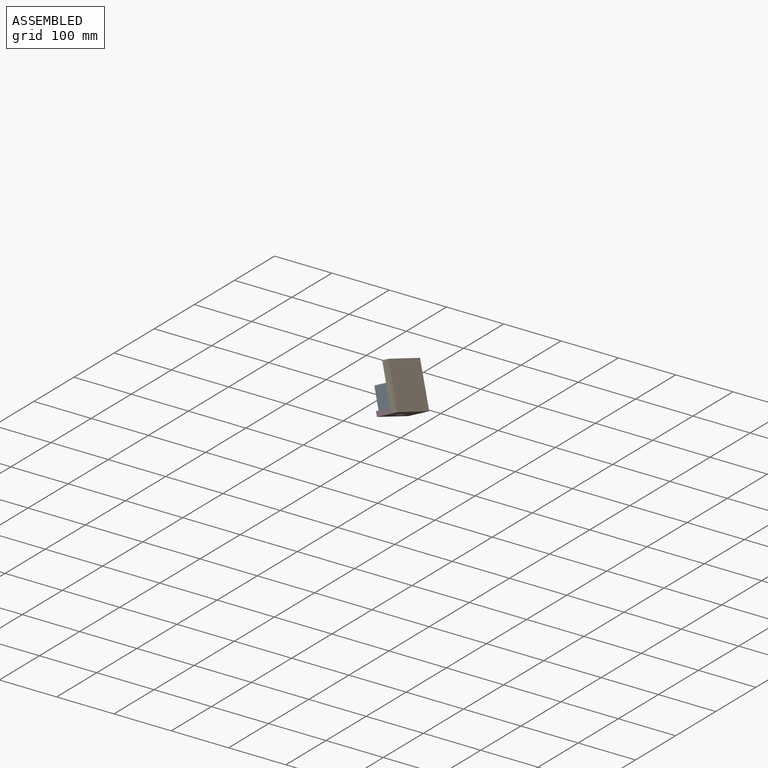
[diagram: assembled view]
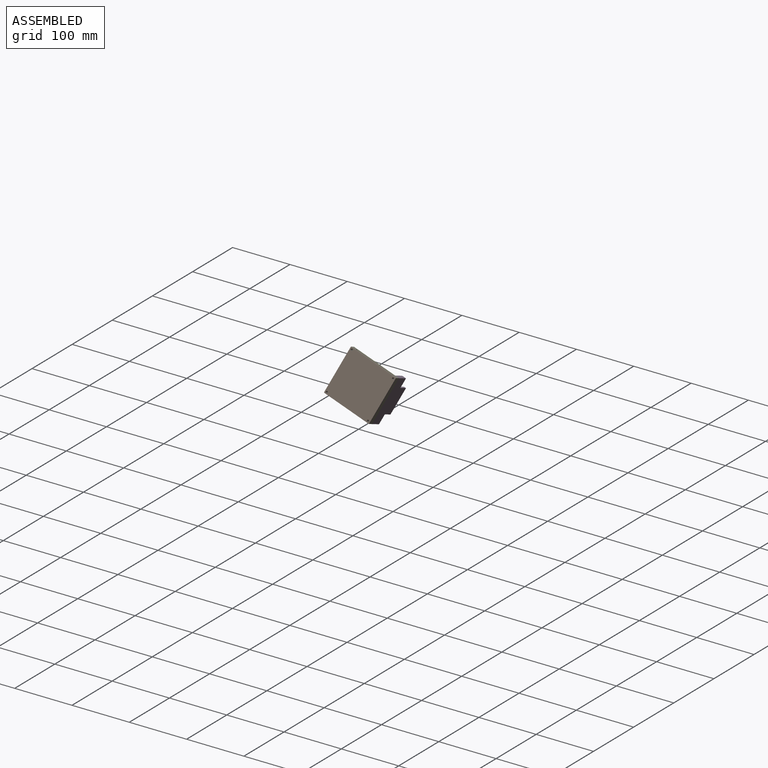
[diagram: assembled view, second angle]
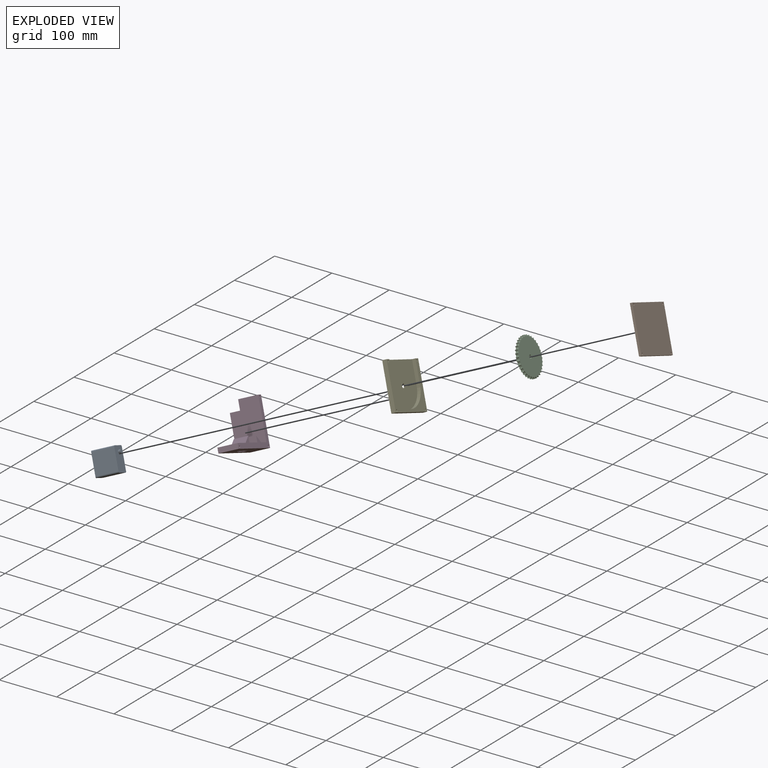
[diagram: exploded view]
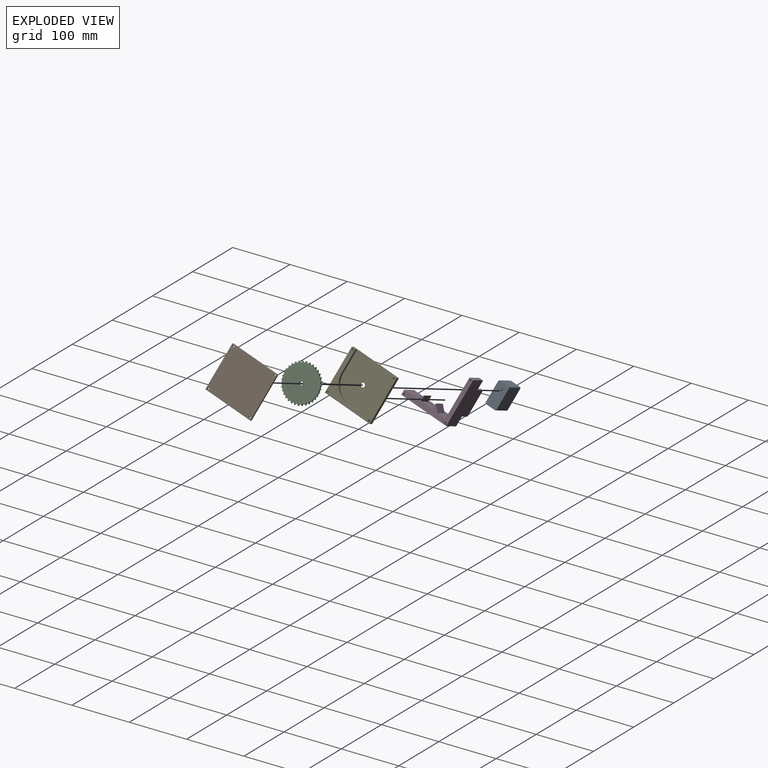
[diagram: exploded view, second angle]
ASSEMBLY  parts=5 mates=5
PART A: 16 faces, bbox 20x48.6x40 mm
  f0: plane 40x36mm, normal (-1,0,0), area 1440mm2, adj f4,f5,f6,f9
  f1: plane 40x16mm, normal (0,0,-1), area 640mm2, adj f4,f5,f6,f7
  f2: plane 40x36mm, normal (1,0,0), area 1440mm2, adj f4,f5,f7,f8
  f3: plane 40x16mm, normal (0,0,1), area 640mm2, adj f4,f5,f8,f9
  f4: plane 40x20mm, normal (0,-1,0), area 776.9mm2, adj f0,f1,f2,f3,f6,f7,f8,f9
  f5: plane 40x20mm, normal (0,1,0), area 768.3mm2, adj f0,f1,f2,f3,f6,f7,f8,f9
  f6: cylinder r=2mm len=40mm, axis (0,-1,0), area 125.7mm2, adj f0,f1,f4,f5
  f7: cylinder r=2mm len=40mm, axis (0,1,0), area 125.7mm2, adj f1,f2,f4,f5
  f8: cylinder r=2mm len=40mm, axis (0,-1,0), area 125.7mm2, adj f2,f3,f4,f5
  f9: cylinder r=2mm len=40mm, axis (0,1,0), area 125.7mm2, adj f0,f3,f4,f5
  f10: cylinder r=2.5mm len=5mm, axis (0,1,0), area 15.7mm2, adj f4,f13
  f11: cylinder r=3mm len=6mm, axis (0,1,0), area 62.2mm2, adj f12,f13
  f12: plane 6x6mm, normal (0,-1,0), area 28.3mm2, adj f11
  f13: plane 6x6mm, normal (0,1,0), area 8.6mm2, adj f10,f11
  f14: cylinder r=3mm len=6mm, axis (0,-1,0), area 81.1mm2, adj f5,f15
  f15: plane 6x6mm, normal (0,1,0), area 28.3mm2, adj f14
PART B: 10 faces, bbox 4x83.6x77.8 mm
  f0: plane 77.8x4mm, normal (0,-1,0), area 311.2mm2, adj f1,f3,f4,f5
  f1: plane 83.6x4mm, normal (0,0,-1), area 334.4mm2, adj f0,f2,f4,f5
  f2: plane 77.8x4mm, normal (0,1,0), area 311.2mm2, adj f1,f3,f4,f5
  f3: plane 83.6x4mm, normal (0,0,1), area 334.4mm2, adj f0,f2,f4,f5
  f4: plane 83.6x77.8mm, normal (1,0,0), area 6471.9mm2, adj f0,f1,f2,f3,f6,f7,f8,f9
  f5: plane 83.6x77.8mm, normal (-1,0,0), area 6471.9mm2, adj f0,f1,f2,f3,f6,f7,f8,f9
  f6: cylinder r=1.6mm len=4mm, axis (1,0,0), area 40.2mm2, adj f4,f5
  f7: cylinder r=1.6mm len=4mm, axis (1,0,0), area 40.2mm2, adj f4,f5
  f8: cylinder r=1.6mm len=4mm, axis (1,0,0), area 40.2mm2, adj f4,f5
  f9: cylinder r=1.6mm len=4mm, axis (1,0,0), area 40.2mm2, adj f4,f5
PART C: 108 faces, bbox 4.9x64.8x64.9 mm
  f0: cylinder r=2.75mm len=4.9mm, axis (-1,0,0), area 19.2mm2, adj f1,f104,f106,f107
  f1: cylinder r=2.41mm len=4.9mm, axis (-1,0,0), area 18.4mm2, adj f0,f2,f106,f107
  f2: cylinder r=30mm len=4.9mm, axis (-1,0,0), area 3.1mm2, adj f1,f3,f106,f107
  f3: cylinder r=2.75mm len=4.9mm, axis (-1,0,0), area 19.2mm2, adj f2,f4,f106,f107
  f4: cylinder r=2.41mm len=4.9mm, axis (-1,0,0), area 18.4mm2, adj f3,f5,f106,f107
  f5: cylinder r=30mm len=4.9mm, axis (-1,0,0), area 3.1mm2, adj f4,f6,f106,f107
  f6: cylinder r=2.75mm len=4.9mm, axis (-1,0,0), area 19.2mm2, adj f5,f7,f106,f107
  f7: cylinder r=2.41mm len=4.9mm, axis (-1,0,0), area 18.4mm2, adj f6,f8,f106,f107
  f8: cylinder r=30mm len=4.9mm, axis (-1,0,0), area 3.1mm2, adj f7,f9,f106,f107
  f9: cylinder r=2.75mm len=4.9mm, axis (-1,0,0), area 19.2mm2, adj f8,f10,f106,f107
  f10: cylinder r=2.41mm len=4.9mm, axis (-1,0,0), area 18.4mm2, adj f9,f11,f106,f107
  f11: cylinder r=30mm len=4.9mm, axis (-1,0,0), area 3.1mm2, adj f10,f12,f106,f107
  f12: cylinder r=2.75mm len=4.9mm, axis (-1,0,0), area 19.2mm2, adj f11,f13,f106,f107
  f13: cylinder r=2.41mm len=4.9mm, axis (-1,0,0), area 18.4mm2, adj f12,f14,f106,f107
  f14: cylinder r=30mm len=4.9mm, axis (-1,0,0), area 3.1mm2, adj f13,f15,f106,f107
  f15: cylinder r=2.75mm len=4.9mm, axis (-1,0,0), area 19.2mm2, adj f14,f16,f106,f107
  f16: cylinder r=2.41mm len=4.9mm, axis (-1,0,0), area 18.4mm2, adj f15,f17,f106,f107
  f17: cylinder r=30mm len=4.9mm, axis (-1,0,0), area 3.1mm2, adj f16,f18,f106,f107
  f18: cylinder r=2.75mm len=4.9mm, axis (-1,0,0), area 19.2mm2, adj f17,f19,f106,f107
  f19: cylinder r=2.41mm len=4.9mm, axis (-1,0,0), area 18.4mm2, adj f18,f20,f106,f107
  f20: cylinder r=30mm len=4.9mm, axis (-1,0,0), area 3.1mm2, adj f19,f21,f106,f107
  f21: cylinder r=2.75mm len=4.9mm, axis (-1,0,0), area 19.2mm2, adj f20,f22,f106,f107
  f22: cylinder r=2.41mm len=4.9mm, axis (-1,0,0), area 18.4mm2, adj f21,f23,f106,f107
  f23: cylinder r=30mm len=4.9mm, axis (-1,0,0), area 3.1mm2, adj f22,f24,f106,f107
  f24: cylinder r=2.75mm len=4.9mm, axis (-1,0,0), area 19.2mm2, adj f23,f25,f106,f107
  f25: cylinder r=2.41mm len=4.9mm, axis (-1,0,0), area 18.4mm2, adj f24,f26,f106,f107
  f26: cylinder r=30mm len=4.9mm, axis (-1,0,0), area 3.1mm2, adj f25,f27,f106,f107
  f27: cylinder r=2.75mm len=4.9mm, axis (-1,0,0), area 19.2mm2, adj f26,f28,f106,f107
  f28: cylinder r=2.41mm len=4.9mm, axis (-1,0,0), area 18.4mm2, adj f27,f29,f106,f107
  f29: cylinder r=30mm len=4.9mm, axis (-1,0,0), area 3.1mm2, adj f28,f30,f106,f107
  f30: cylinder r=2.75mm len=4.9mm, axis (-1,0,0), area 19.2mm2, adj f29,f31,f106,f107
  f31: cylinder r=2.41mm len=4.9mm, axis (-1,0,0), area 18.4mm2, adj f30,f32,f106,f107
  f32: cylinder r=30mm len=4.9mm, axis (-1,0,0), area 3.1mm2, adj f31,f33,f106,f107
  f33: cylinder r=2.75mm len=4.9mm, axis (-1,0,0), area 19.2mm2, adj f32,f34,f106,f107
  f34: cylinder r=2.41mm len=4.9mm, axis (-1,0,0), area 18.4mm2, adj f33,f35,f106,f107
  f35: cylinder r=30mm len=4.9mm, axis (-1,0,0), area 3.1mm2, adj f34,f36,f106,f107
  f36: cylinder r=2.75mm len=4.9mm, axis (-1,0,0), area 19.2mm2, adj f35,f37,f106,f107
  f37: cylinder r=2.41mm len=4.9mm, axis (-1,0,0), area 18.4mm2, adj f36,f38,f106,f107
  f38: cylinder r=30mm len=4.9mm, axis (-1,0,0), area 3.1mm2, adj f37,f39,f106,f107
  f39: cylinder r=2.75mm len=4.9mm, axis (-1,0,0), area 19.2mm2, adj f38,f40,f106,f107
  f40: cylinder r=2.41mm len=4.9mm, axis (-1,0,0), area 18.4mm2, adj f39,f41,f106,f107
  f41: cylinder r=30mm len=4.9mm, axis (-1,0,0), area 3.1mm2, adj f40,f42,f106,f107
  f42: cylinder r=2.75mm len=4.9mm, axis (-1,0,0), area 19.2mm2, adj f41,f43,f106,f107
  f43: cylinder r=2.41mm len=4.9mm, axis (-1,0,0), area 18.4mm2, adj f42,f44,f106,f107
  f44: cylinder r=30mm len=4.9mm, axis (-1,0,0), area 3.1mm2, adj f43,f45,f106,f107
  f45: cylinder r=2.75mm len=4.9mm, axis (-1,0,0), area 19.2mm2, adj f44,f46,f106,f107
  f46: cylinder r=2.41mm len=4.9mm, axis (-1,0,0), area 18.4mm2, adj f45,f47,f106,f107
  f47: cylinder r=30mm len=4.9mm, axis (-1,0,0), area 3.1mm2, adj f46,f48,f106,f107
  f48: cylinder r=2.75mm len=4.9mm, axis (-1,0,0), area 19.2mm2, adj f47,f49,f106,f107
  f49: cylinder r=2.41mm len=4.9mm, axis (-1,0,0), area 18.4mm2, adj f48,f50,f106,f107
  f50: cylinder r=30mm len=4.9mm, axis (-1,0,0), area 3.1mm2, adj f49,f51,f106,f107
  f51: cylinder r=2.75mm len=4.9mm, axis (-1,0,0), area 19.2mm2, adj f50,f52,f106,f107
  f52: cylinder r=2.41mm len=4.9mm, axis (-1,0,0), area 18.4mm2, adj f51,f53,f106,f107
  f53: cylinder r=30mm len=4.9mm, axis (-1,0,0), area 3.1mm2, adj f52,f54,f106,f107
  f54: cylinder r=2.75mm len=4.9mm, axis (-1,0,0), area 19.2mm2, adj f53,f55,f106,f107
  f55: cylinder r=2.41mm len=4.9mm, axis (-1,0,0), area 18.4mm2, adj f54,f56,f106,f107
  f56: cylinder r=30mm len=4.9mm, axis (-1,0,0), area 3.1mm2, adj f55,f57,f106,f107
  f57: cylinder r=2.75mm len=4.9mm, axis (-1,0,0), area 19.2mm2, adj f56,f58,f106,f107
  f58: cylinder r=2.41mm len=4.9mm, axis (-1,0,0), area 18.4mm2, adj f57,f59,f106,f107
  f59: cylinder r=30mm len=4.9mm, axis (-1,0,0), area 3.1mm2, adj f58,f60,f106,f107
  f60: cylinder r=2.75mm len=4.9mm, axis (-1,0,0), area 19.2mm2, adj f59,f61,f106,f107
  f61: cylinder r=2.41mm len=4.9mm, axis (-1,0,0), area 18.4mm2, adj f60,f62,f106,f107
  f62: cylinder r=30mm len=4.9mm, axis (-1,0,0), area 3.1mm2, adj f61,f63,f106,f107
  f63: cylinder r=2.75mm len=4.9mm, axis (-1,0,0), area 19.2mm2, adj f62,f64,f106,f107
  f64: cylinder r=2.41mm len=4.9mm, axis (-1,0,0), area 18.4mm2, adj f63,f65,f106,f107
  f65: cylinder r=30mm len=4.9mm, axis (-1,0,0), area 3.1mm2, adj f64,f66,f106,f107
  f66: cylinder r=2.75mm len=4.9mm, axis (-1,0,0), area 19.2mm2, adj f65,f67,f106,f107
  f67: cylinder r=2.41mm len=4.9mm, axis (-1,0,0), area 18.4mm2, adj f66,f68,f106,f107
  f68: cylinder r=30mm len=4.9mm, axis (-1,0,0), area 3.1mm2, adj f67,f69,f106,f107
  f69: cylinder r=2.75mm len=4.9mm, axis (-1,0,0), area 19.2mm2, adj f68,f70,f106,f107
  f70: cylinder r=2.41mm len=4.9mm, axis (-1,0,0), area 18.4mm2, adj f69,f71,f106,f107
  f71: cylinder r=30mm len=4.9mm, axis (-1,0,0), area 3.1mm2, adj f70,f72,f106,f107
  f72: cylinder r=2.75mm len=4.9mm, axis (-1,0,0), area 19.2mm2, adj f71,f73,f106,f107
  f73: cylinder r=2.41mm len=4.9mm, axis (-1,0,0), area 18.4mm2, adj f72,f74,f106,f107
  f74: cylinder r=30mm len=4.9mm, axis (-1,0,0), area 3.1mm2, adj f73,f75,f106,f107
  f75: cylinder r=2.75mm len=4.9mm, axis (-1,0,0), area 19.2mm2, adj f74,f76,f106,f107
  f76: cylinder r=2.41mm len=4.9mm, axis (-1,0,0), area 18.4mm2, adj f75,f77,f106,f107
  f77: cylinder r=30mm len=4.9mm, axis (-1,0,0), area 3.1mm2, adj f76,f78,f106,f107
  f78: cylinder r=2.75mm len=4.9mm, axis (-1,0,0), area 19.2mm2, adj f77,f79,f106,f107
  f79: cylinder r=2.41mm len=4.9mm, axis (-1,0,0), area 18.4mm2, adj f78,f80,f106,f107
  f80: cylinder r=30mm len=4.9mm, axis (-1,0,0), area 3.1mm2, adj f79,f81,f106,f107
  f81: cylinder r=2.75mm len=4.9mm, axis (-1,0,0), area 19.2mm2, adj f80,f82,f106,f107
  f82: cylinder r=2.41mm len=4.9mm, axis (-1,0,0), area 18.4mm2, adj f81,f83,f106,f107
  f83: cylinder r=30mm len=4.9mm, axis (-1,0,0), area 3.1mm2, adj f82,f84,f106,f107
  f84: cylinder r=2.75mm len=4.9mm, axis (-1,0,0), area 19.2mm2, adj f83,f85,f106,f107
  f85: cylinder r=2.41mm len=4.9mm, axis (-1,0,0), area 18.4mm2, adj f84,f86,f106,f107
  f86: cylinder r=30mm len=4.9mm, axis (-1,0,0), area 3.1mm2, adj f85,f87,f106,f107
  f87: cylinder r=2.75mm len=4.9mm, axis (-1,0,0), area 19.2mm2, adj f86,f88,f106,f107
  f88: cylinder r=2.41mm len=4.9mm, axis (-1,0,0), area 18.4mm2, adj f87,f89,f106,f107
  f89: cylinder r=30mm len=4.9mm, axis (-1,0,0), area 3.1mm2, adj f88,f90,f106,f107
  f90: cylinder r=2.75mm len=4.9mm, axis (-1,0,0), area 19.2mm2, adj f89,f91,f106,f107
  f91: cylinder r=2.41mm len=4.9mm, axis (-1,0,0), area 18.4mm2, adj f90,f92,f106,f107
  f92: cylinder r=30mm len=4.9mm, axis (-1,0,0), area 3.1mm2, adj f91,f93,f106,f107
  f93: cylinder r=2.75mm len=4.9mm, axis (-1,0,0), area 19.2mm2, adj f92,f94,f106,f107
  f94: cylinder r=2.41mm len=4.9mm, axis (-1,0,0), area 18.4mm2, adj f93,f95,f106,f107
  f95: cylinder r=30mm len=4.9mm, axis (-1,0,0), area 3.1mm2, adj f94,f96,f106,f107
  f96: cylinder r=2.75mm len=4.9mm, axis (-1,0,0), area 19.2mm2, adj f95,f97,f106,f107
  f97: cylinder r=2.41mm len=4.9mm, axis (-1,0,0), area 18.4mm2, adj f96,f98,f106,f107
  f98: cylinder r=30mm len=4.9mm, axis (-1,0,0), area 3.1mm2, adj f97,f99,f106,f107
  f99: cylinder r=2.75mm len=4.9mm, axis (-1,0,0), area 19.2mm2, adj f98,f100,f106,f107
  f100: cylinder r=2.41mm len=4.9mm, axis (-1,0,0), area 18.4mm2, adj f99,f101,f106,f107
  f101: cylinder r=30mm len=4.9mm, axis (-1,0,0), area 3.1mm2, adj f100,f102,f106,f107
  f102: cylinder r=2.75mm len=4.9mm, axis (-1,0,0), area 19.2mm2, adj f101,f103,f106,f107
  f103: cylinder r=2.41mm len=4.9mm, axis (-1,0,0), area 18.4mm2, adj f102,f104,f106,f107
  f104: cylinder r=30mm len=4.9mm, axis (-1,0,0), area 3.1mm2, adj f0,f103,f106,f107
  f105: cylinder r=3.05mm len=6.1mm, axis (-1,0,0), area 93.9mm2, adj f106,f107
  f106: plane 64.87x64.84mm, normal (1,0,0), area 2886mm2, adj f0,f1,f2,f3,f4,f5,f6,f7
  f107: plane 64.87x64.84mm, normal (-1,0,0), area 2886mm2, adj f0,f1,f2,f3,f4,f5,f6,f7
PART D: 24 faces, bbox 55x83.6x77.8 mm
  f0: plane 21x19mm, normal (0,0,1), area 399mm2, adj f3,f5,f7,f23
  f1: plane 83.6x35mm, normal (0,0,-1), area 2800mm2, adj f3,f5,f7,f10,f11,f17,f22,f23
  f2: plane 25x10mm, normal (0,0.71,0.71), area 353.6mm2, adj f3,f4,f5,f6
  f3: plane 25x18.5mm, normal (0,-1,0), area 301mm2, adj f0,f1,f2,f4,f5,f22,f23
  f4: plane 10x10mm, normal (-1,0,0), area 50mm2, adj f2,f3,f6
  f5: plane 83.6x77.8mm, normal (1,0,0), area 1271.6mm2, adj f0,f1,f2,f3,f6,f7,f8,f10
  f6: plane 76.6x35mm, normal (0,0,1), area 1656mm2, adj f2,f4,f5,f8,f9,f10,f13,f17
  f7: plane 25x18.5mm, normal (0,1,0), area 301mm2, adj f0,f1,f5,f8,f9,f22,f23
  f8: plane 25x10mm, normal (0,-0.71,0.71), area 353.6mm2, adj f5,f6,f7,f9
  f9: plane 10x10mm, normal (-1,0,0), area 50mm2, adj f6,f7,f8
  f10: plane 35x8.5mm, normal (0,-1,0), area 297.5mm2, adj f1,f5,f6,f17
  f11: plane 77.8x55mm, normal (0,1,0), area 3618.3mm2, adj f1,f5,f12,f17,f18,f20,f21
  f12: plane 35x7mm, normal (0,0,1), area 245mm2, adj f5,f11,f13,f17
  f13: plane 69.3x35mm, normal (0,-1,0), area 2425.5mm2, adj f5,f6,f12,f17
  f14: cylinder r=1.6mm len=35mm, axis (-1,0,0), area 351.9mm2, adj f5,f17
  f15: cylinder r=1.6mm len=35mm, axis (-1,0,0), area 351.9mm2, adj f5,f17
  f16: cylinder r=1.6mm len=35mm, axis (-1,0,0), area 351.9mm2, adj f5,f17
  f17: plane 83.6x77.8mm, normal (-1,0,0), area 1020.4mm2, adj f1,f6,f10,f11,f12,f13,f14,f15
  f18: plane 20x3.38mm, normal (0,0,1), area 67.5mm2, adj f11,f17,f19,f21
  f19: plane 44.77x20mm, normal (0,-1,0), area 895.3mm2, adj f17,f18,f20,f21
  f20: plane 20x3.38mm, normal (0,0,-1), area 67.5mm2, adj f11,f17,f19,f21
  f21: plane 44.77x3.38mm, normal (-1,0,0), area 151.2mm2, adj f11,f18,f19,f20
  f22: plane 21x8.5mm, normal (1,0,0), area 178.5mm2, adj f1,f3,f6,f7
  f23: plane 21x8.5mm, normal (-1,0,0), area 178.5mm2, adj f0,f1,f3,f7
PART E: 15 faces, bbox 7.7x83.6x77.8 mm
  f0: plane 83.6x77.8mm, normal (-1,0,0), area 6433.4mm2, adj f3,f4,f5,f6,f10,f11,f12,f13
  f1: plane 83.6x77.8mm, normal (1,0,0), area 1876mm2, adj f3,f4,f5,f6,f7,f8,f9,f11
  f2: plane 73.4x69.6mm, normal (1,0,0), area 4557.4mm2, adj f6,f7,f8,f9,f10
  f3: plane 77.8x7.7mm, normal (0,-1,0), area 599.1mm2, adj f0,f1,f4,f6
  f4: plane 83.6x7.7mm, normal (0,0,-1), area 643.7mm2, adj f0,f1,f3,f5
  f5: plane 77.8x7.7mm, normal (0,1,0), area 599.1mm2, adj f0,f1,f4,f6
  f6: plane 83.6x7.7mm, normal (0,0,1), area 226.1mm2, adj f0,f1,f2,f3,f5,f7,f8
  f7: plane 42.14x6mm, normal (0,1,0), area 252.8mm2, adj f1,f2,f6,f9
  f8: plane 42.14x6mm, normal (0,-1,0), area 252.8mm2, adj f1,f2,f6,f9
  f9: cylinder r=35mm len=69.6mm, axis (-1,0,0), area 614.8mm2, adj f1,f2,f7,f8
  f10: cylinder r=3.5mm len=7mm, axis (1,0,0), area 37.4mm2, adj f0,f2
  f11: cylinder r=1.6mm len=7.7mm, axis (1,0,0), area 77.4mm2, adj f0,f1
  f12: cylinder r=1.6mm len=7.7mm, axis (1,0,0), area 77.4mm2, adj f0,f1
  f13: cylinder r=1.6mm len=7.7mm, axis (1,0,0), area 77.4mm2, adj f0,f1
  f14: cylinder r=1.6mm len=7.7mm, axis (1,0,0), area 77.4mm2, adj f0,f1
PLACE A rot(axis=(-0.36,-0.04,0.93),98.4deg) t=(-23.13,-6.45,-68.15)mm
PLACE B rot(axis=(-0.62,-0.78,0.14),31.9deg) t=(23.5,-32.14,-45.76)mm
PLACE C rot(axis=(-0.62,-0.78,0.14),31.9deg) t=(1.05,18.43,-29.04)mm
PLACE D rot(axis=(-0.62,-0.78,0.14),31.9deg) t=(-5.49,-36.76,-58.46)mm
PLACE E rot(axis=(-0.62,-0.78,0.14),31.9deg) t=(17.17,-33.15,-48.53)mm
MATE cylindrical B.f9 <-> E.f13  axis (0.91,0.14,0.4) through (22.23,-27.92,-44.4)mm
MATE cylindrical B.f7 <-> E.f14  axis (-0.91,-0.14,-0.4) through (-8.12,66.32,-9.45)mm
MATE cylindrical D.f15 <-> E.f12  axis (0.91,0.14,0.4) through (24.97,44.5,-69.4)mm
MATE cylindrical E.f9 <-> A.f10  axis (-0.91,-0.14,-0.4) through (0.52,18.34,-29.27)mm
MATE cylindrical C.f105 <-> E.f9  axis (-0.91,-0.14,-0.4) through (1.05,18.43,-29.04)mm
